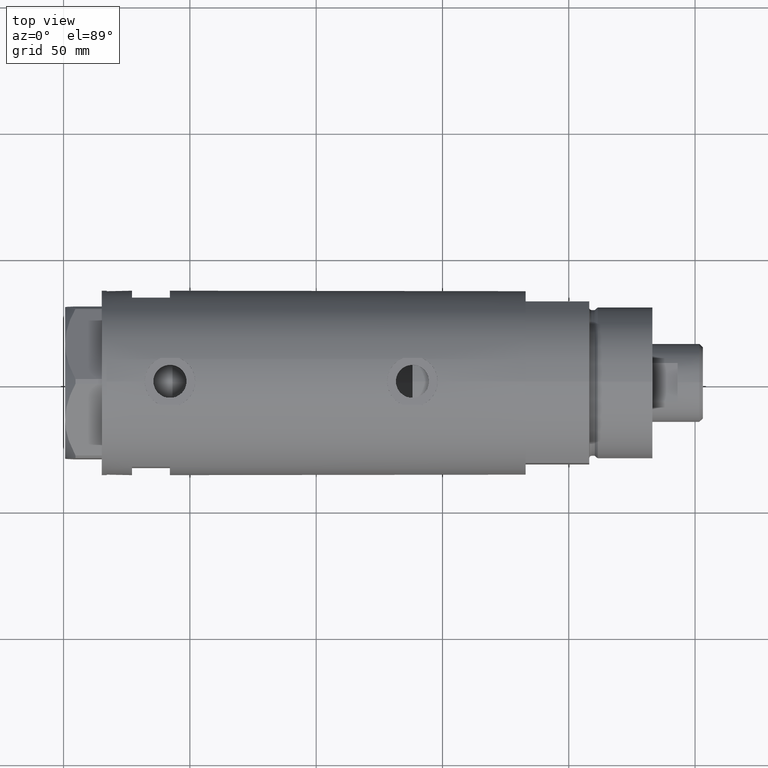
[diagram: clean part render]
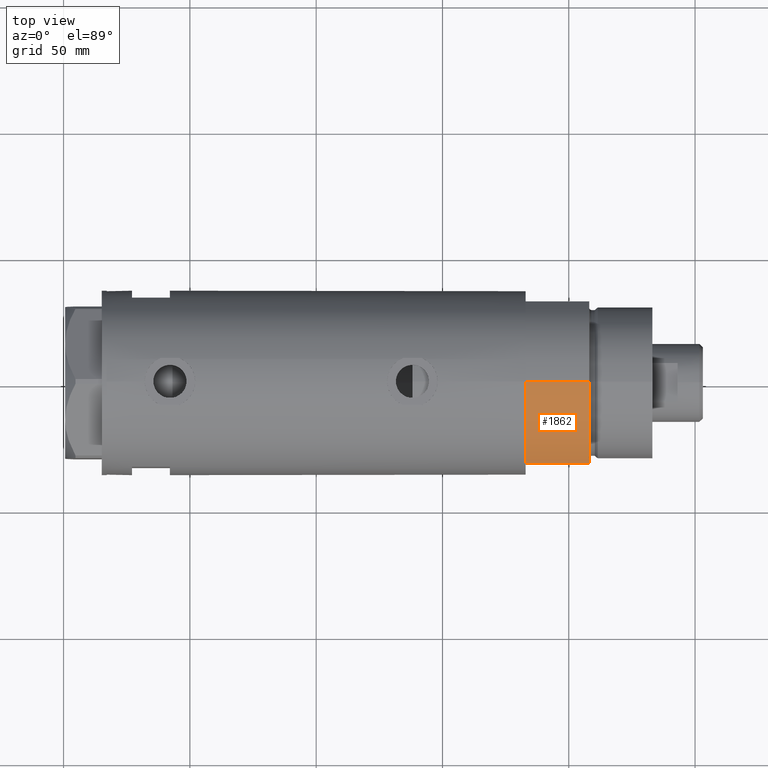
[diagram: same view with one face highlighted and labeled with its STEP entity id]
A machine part, top view. The second image highlights one B-rep face of the part: STEP entity #1862.
In plain terms, the highlighted cylindrical surface (partial cylindrical patch) has radius 36.5 mm, axis along (-1, -0, 0).
Its self-contained STEP definition (entity closure, byte-faithful):
#90 = ORIENTED_EDGE ( 'NONE', *, *, #869, .F. ) ;
#347 = CARTESIAN_POINT ( 'NONE',  ( 0.000000000000000000, 0.000000000000000000, 0.000000000000000000 ) ) ;
#674 = FACE_OUTER_BOUND ( 'NONE', #2985, .T. ) ;
#869 = EDGE_CURVE ( 'NONE', #4543, #1654, #4899, .T. ) ;
#894 = EDGE_CURVE ( 'NONE', #4543, #5514, #5218, .T. ) ;
#1016 = DIRECTION ( 'NONE',  ( 1.000000000000000000, 0.000000000000000000, 0.000000000000000000 ) ) ;
#1073 = DIRECTION ( 'NONE',  ( -0.000000000000000000, -0.000000000000000000, 1.000000000000000000 ) ) ;
#1085 = VECTOR ( 'NONE', #4145, 1000.000000000000000 ) ;
#1108 = CARTESIAN_POINT ( 'NONE',  ( -36.50000000000000000, 0.000000000000000000, 25.19999999999999929 ) ) ;
#1528 = ORIENTED_EDGE ( 'NONE', *, *, #4738, .T. ) ;
#1654 = VERTEX_POINT ( 'NONE', #4075 ) ;
#1664 = CIRCLE ( 'NONE', #2898, 36.50000000000000000 ) ;
#1669 = CARTESIAN_POINT ( 'NONE',  ( -36.50000000000000000, 0.000000000000000000, 25.19999999999999929 ) ) ;
#1751 = ORIENTED_EDGE ( 'NONE', *, *, #4440, .T. ) ;
#1862 = ADVANCED_FACE ( 'NONE', ( #674 ), #4294, .T. ) ;
#1997 = DIRECTION ( 'NONE',  ( -0.000000000000000000, -0.000000000000000000, -1.000000000000000000 ) ) ;
#2124 = VECTOR ( 'NONE', #1073, 1000.000000000000000 ) ;
#2131 = DIRECTION ( 'NONE',  ( 1.000000000000000000, 0.000000000000000000, 0.000000000000000000 ) ) ;
#2291 = AXIS2_PLACEMENT_3D ( 'NONE', #4728, #5123, #1016 ) ;
#2496 = AXIS2_PLACEMENT_3D ( 'NONE', #5207, #1997, #4814 ) ;
#2583 = CARTESIAN_POINT ( 'NONE',  ( -36.50000000000000000, 0.000000000000000000, 0.000000000000000000 ) ) ;
#2589 = DIRECTION ( 'NONE',  ( 0.000000000000000000, 0.000000000000000000, 1.000000000000000000 ) ) ;
#2832 = LINE ( 'NONE', #4301, #2124 ) ;
#2898 = AXIS2_PLACEMENT_3D ( 'NONE', #347, #2589, #2131 ) ;
#2985 = EDGE_LOOP ( 'NONE', ( #90, #5867, #1751, #1528 ) ) ;
#4075 = CARTESIAN_POINT ( 'NONE',  ( -17.55704986607943496, -32.00000000000000000, 25.19999999999999929 ) ) ;
#4145 = DIRECTION ( 'NONE',  ( -0.000000000000000000, -0.000000000000000000, -1.000000000000000000 ) ) ;
#4294 = CYLINDRICAL_SURFACE ( 'NONE', #2496, 36.50000000000000000 ) ;
#4301 = CARTESIAN_POINT ( 'NONE',  ( -17.55704986607943141, -32.00000000000000000, 0.000000000000000000 ) ) ;
#4423 = VERTEX_POINT ( 'NONE', #5312 ) ;
#4440 = EDGE_CURVE ( 'NONE', #5514, #4423, #1664, .T. ) ;
#4543 = VERTEX_POINT ( 'NONE', #1669 ) ;
#4728 = CARTESIAN_POINT ( 'NONE',  ( 0.000000000000000000, 0.000000000000000000, 25.19999999999999929 ) ) ;
#4738 = EDGE_CURVE ( 'NONE', #4423, #1654, #2832, .T. ) ;
#4814 = DIRECTION ( 'NONE',  ( -1.000000000000000000, 0.000000000000000000, 0.000000000000000000 ) ) ;
#4899 = CIRCLE ( 'NONE', #2291, 36.50000000000000000 ) ;
#5123 = DIRECTION ( 'NONE',  ( 0.000000000000000000, 0.000000000000000000, 1.000000000000000000 ) ) ;
#5207 = CARTESIAN_POINT ( 'NONE',  ( 0.000000000000000000, 0.000000000000000000, 25.19999999999999929 ) ) ;
#5218 = LINE ( 'NONE', #1108, #1085 ) ;
#5312 = CARTESIAN_POINT ( 'NONE',  ( -17.55704986607943496, -32.00000000000000000, 0.000000000000000000 ) ) ;
#5514 = VERTEX_POINT ( 'NONE', #2583 ) ;
#5867 = ORIENTED_EDGE ( 'NONE', *, *, #894, .T. ) ;